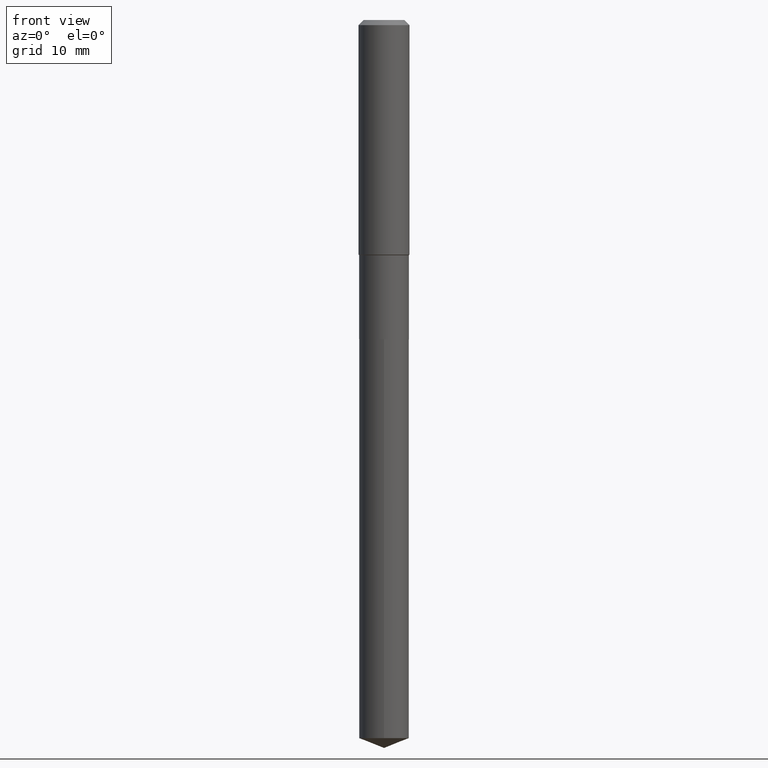
[diagram: clean part render]
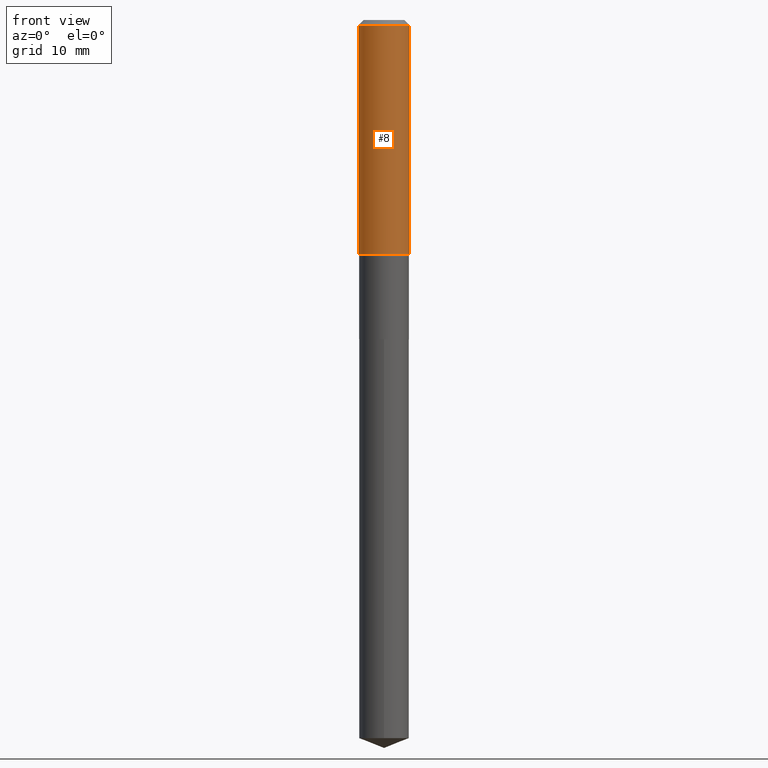
[diagram: same view with one face highlighted and labeled with its STEP entity id]
A machine part, front view. The second image highlights one B-rep face of the part: STEP entity #8.
In plain terms, the highlighted cylindrical surface (edge-blend (fillet) strip) has radius 4.0005 mm, axis along (-0, 0, 1).
Its self-contained STEP definition (entity closure, byte-faithful):
#5 = CARTESIAN_POINT ( 'NONE',  ( 7.703226739483226971E-31, -1.099816621735597538E-16, -0.03150000000000019451 ) ) ;
#8 = ADVANCED_FACE ( 'NONE', ( #396 ), #429, .T. ) ;
#38 = DIRECTION ( 'NONE',  ( 1.000000000000000000, -6.982962677686265922E-15, 0.000000000000000000 ) ) ;
#44 = EDGE_CURVE ( 'NONE', #263, #480, #161, .T. ) ;
#46 = CIRCLE ( 'NONE', #241, 0.1575000000000001676 ) ;
#80 = CARTESIAN_POINT ( 'NONE',  ( 0.1575000000000000844, -1.099816621735587677E-15, 7.679978421878603638E-30 ) ) ;
#81 = LINE ( 'NONE', #80, #418 ) ;
#82 = CIRCLE ( 'NONE', #276, 0.1575000000000000011 ) ;
#85 = DIRECTION ( 'NONE',  ( -2.445468806185136877E-29, 3.491481338843145188E-15, 1.000000000000000000 ) ) ;
#91 = EDGE_CURVE ( 'NONE', #263, #247, #46, .T. ) ;
#95 = CARTESIAN_POINT ( 'NONE',  ( 0.1575000000000001676, -6.148673211769718717E-15, -1.446050000000000058 ) ) ;
#106 = VECTOR ( 'NONE', #85, 39.37007874015748143 ) ;
#130 = ORIENTED_EDGE ( 'NONE', *, *, #374, .F. ) ;
#136 = AXIS2_PLACEMENT_3D ( 'NONE', #393, #439, #246 ) ;
#141 = CARTESIAN_POINT ( 'NONE',  ( -0.1575000000000001676, -3.929751781211971266E-15, -1.446050000000000058 ) ) ;
#151 = CARTESIAN_POINT ( 'NONE',  ( -0.1575000000000000011, -1.460314317281686560E-15, -0.03150000000000019451 ) ) ;
#152 = ORIENTED_EDGE ( 'NONE', *, *, #91, .T. ) ;
#161 = LINE ( 'NONE', #427, #106 ) ;
#169 = DIRECTION ( 'NONE',  ( -2.445468806185136597E-29, 3.491481338843145583E-15, 1.000000000000000000 ) ) ;
#222 = VERTEX_POINT ( 'NONE', #440 ) ;
#241 = AXIS2_PLACEMENT_3D ( 'NONE', #282, #169, #389 ) ;
#246 = DIRECTION ( 'NONE',  ( 1.000000000000000000, -6.982962677686267499E-15, 4.876176775795936353E-29 ) ) ;
#247 = VERTEX_POINT ( 'NONE', #95 ) ;
#263 = VERTEX_POINT ( 'NONE', #141 ) ;
#270 = DIRECTION ( 'NONE',  ( -2.445468806185136597E-29, 3.491481338843145583E-15, 1.000000000000000000 ) ) ;
#276 = AXIS2_PLACEMENT_3D ( 'NONE', #5, #270, #38 ) ;
#282 = CARTESIAN_POINT ( 'NONE',  ( 3.536270167184016952E-29, -5.048856590034130447E-15, -1.446050000000000058 ) ) ;
#304 = EDGE_LOOP ( 'NONE', ( #403, #152, #444, #130 ) ) ;
#348 = DIRECTION ( 'NONE',  ( -2.445468806185136877E-29, 3.491481338843145188E-15, 1.000000000000000000 ) ) ;
#374 = EDGE_CURVE ( 'NONE', #480, #222, #82, .T. ) ;
#389 = DIRECTION ( 'NONE',  ( 1.000000000000000000, -6.982962677686267499E-15, 0.000000000000000000 ) ) ;
#393 = CARTESIAN_POINT ( 'NONE',  ( 0.000000000000000000, 0.000000000000000000, 0.000000000000000000 ) ) ;
#396 = FACE_OUTER_BOUND ( 'NONE', #304, .T. ) ;
#401 = EDGE_CURVE ( 'NONE', #247, #222, #81, .T. ) ;
#403 = ORIENTED_EDGE ( 'NONE', *, *, #44, .F. ) ;
#418 = VECTOR ( 'NONE', #348, 39.37007874015748143 ) ;
#427 = CARTESIAN_POINT ( 'NONE',  ( -0.1575000000000000844, 1.119104808822158392E-15, -7.747322767151481189E-30 ) ) ;
#429 = CYLINDRICAL_SURFACE ( 'NONE', #136, 0.1575000000000000844 ) ;
#439 = DIRECTION ( 'NONE',  ( -2.445468806185136597E-29, 3.491481338843145583E-15, 1.000000000000000000 ) ) ;
#440 = CARTESIAN_POINT ( 'NONE',  ( 0.1575000000000000011, -1.209798283909146741E-15, -0.03150000000000019451 ) ) ;
#444 = ORIENTED_EDGE ( 'NONE', *, *, #401, .T. ) ;
#480 = VERTEX_POINT ( 'NONE', #151 ) ;